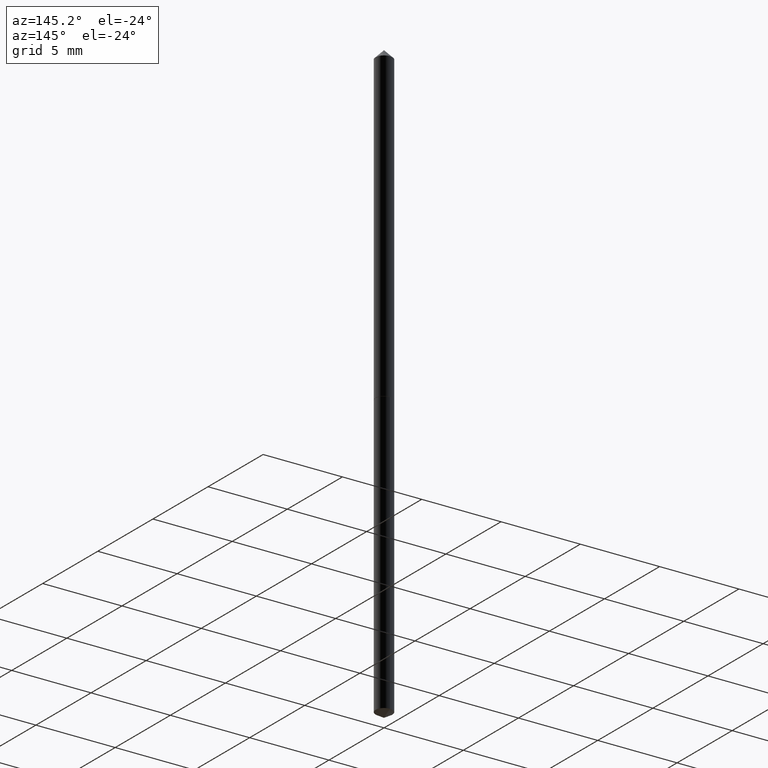
[diagram: clean part render]
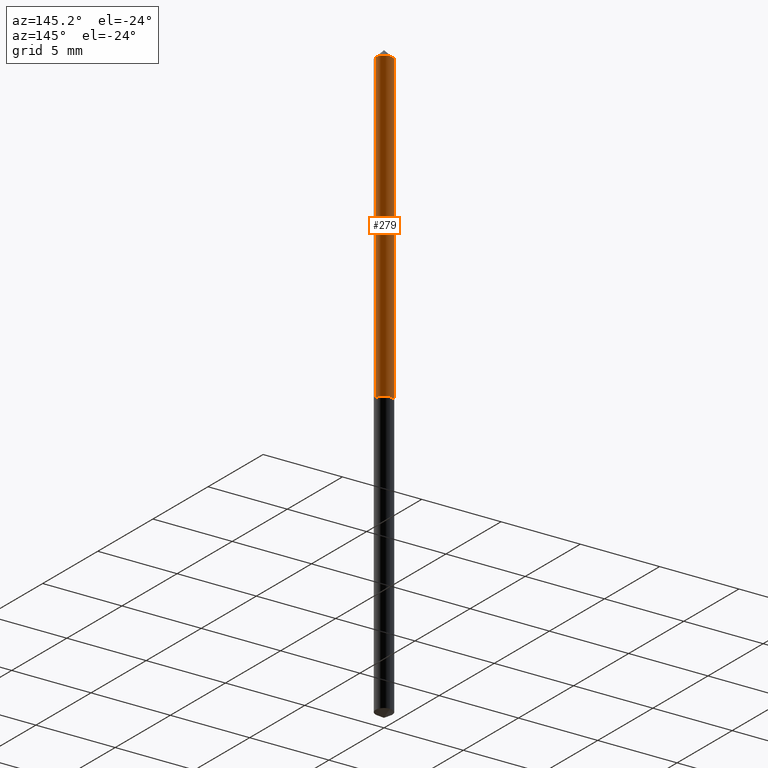
[diagram: same view with one face highlighted and labeled with its STEP entity id]
A machine part, auxiliary view. The second image highlights one B-rep face of the part: STEP entity #279.
In plain terms, the highlighted cylindrical surface (edge-blend (fillet) strip) has radius 0.5334 mm, axis along (-0, 0, 1).
Its self-contained STEP definition (entity closure, byte-faithful):
#7 = DIRECTION ( 'NONE',  ( -2.445468806185136597E-29, 3.491481338843145583E-15, 1.000000000000000000 ) ) ;
#8 = ORIENTED_EDGE ( 'NONE', *, *, #126, .T. ) ;
#14 = AXIS2_PLACEMENT_3D ( 'NONE', #321, #44, #297 ) ;
#16 = VECTOR ( 'NONE', #219, 39.37007874015748143 ) ;
#24 = AXIS2_PLACEMENT_3D ( 'NONE', #163, #138, #328 ) ;
#38 = VERTEX_POINT ( 'NONE', #190 ) ;
#42 = ORIENTED_EDGE ( 'NONE', *, *, #349, .F. ) ;
#44 = DIRECTION ( 'NONE',  ( -2.445468806185136597E-29, 3.491481338843145583E-15, 1.000000000000000000 ) ) ;
#52 = ORIENTED_EDGE ( 'NONE', *, *, #69, .F. ) ;
#55 = FACE_OUTER_BOUND ( 'NONE', #355, .T. ) ;
#69 = EDGE_CURVE ( 'NONE', #38, #346, #109, .T. ) ;
#85 = CARTESIAN_POINT ( 'NONE',  ( 0.02100000000000000824, -2.557510080702606759E-16, -0.03125000000000020817 ) ) ;
#90 = EDGE_CURVE ( 'NONE', #186, #99, #221, .T. ) ;
#99 = VERTEX_POINT ( 'NONE', #168 ) ;
#102 = CYLINDRICAL_SURFACE ( 'NONE', #14, 0.02100000000000005335 ) ;
#109 = LINE ( 'NONE', #360, #16 ) ;
#126 = EDGE_CURVE ( 'NONE', #38, #186, #327, .T. ) ;
#129 = DIRECTION ( 'NONE',  ( 1.000000000000000000, -6.982962677686276177E-15, 0.000000000000000000 ) ) ;
#138 = DIRECTION ( 'NONE',  ( -2.445468806185136597E-29, 3.491481338843145583E-15, 1.000000000000000000 ) ) ;
#147 = CARTESIAN_POINT ( 'NONE',  ( -0.02100000000000010192, -2.614293505184728629E-15, -0.7915000000000002034 ) ) ;
#150 = CIRCLE ( 'NONE', #24, 0.02100000000000000824 ) ;
#163 = CARTESIAN_POINT ( 'NONE',  ( 7.642090019328602662E-31, -1.091087918388490267E-16, -0.03125000000000020817 ) ) ;
#168 = CARTESIAN_POINT ( 'NONE',  ( -0.02100000000000000824, -1.287094161256977096E-15, -0.03125000000000020817 ) ) ;
#171 = DIRECTION ( 'NONE',  ( -2.445468806185136877E-29, 3.491481338843145188E-15, 1.000000000000000000 ) ) ;
#175 = AXIS2_PLACEMENT_3D ( 'NONE', #210, #7, #129 ) ;
#186 = VERTEX_POINT ( 'NONE', #147 ) ;
#190 = CARTESIAN_POINT ( 'NONE',  ( 0.02100000000000010192, -2.910149695925762806E-15, -0.7915000000000002034 ) ) ;
#200 = CARTESIAN_POINT ( 'NONE',  ( -0.02100000000000005335, 1.492139745096214181E-16, -1.032976368953532787E-30 ) ) ;
#210 = CARTESIAN_POINT ( 'NONE',  ( 1.935588560095536193E-29, -2.763507479694350590E-15, -0.7915000000000002034 ) ) ;
#219 = DIRECTION ( 'NONE',  ( -2.445468806185136877E-29, 3.491481338843145188E-15, 1.000000000000000000 ) ) ;
#221 = LINE ( 'NONE', #200, #363 ) ;
#264 = ORIENTED_EDGE ( 'NONE', *, *, #90, .T. ) ;
#279 = ADVANCED_FACE ( 'NONE', ( #55 ), #102, .T. ) ;
#297 = DIRECTION ( 'NONE',  ( 1.000000000000000000, -6.982962677686267499E-15, 4.876176775795936353E-29 ) ) ;
#321 = CARTESIAN_POINT ( 'NONE',  ( 0.000000000000000000, 0.000000000000000000, 0.000000000000000000 ) ) ;
#327 = CIRCLE ( 'NONE', #175, 0.02100000000000010192 ) ;
#328 = DIRECTION ( 'NONE',  ( 1.000000000000000000, -6.982962677686265922E-15, 0.000000000000000000 ) ) ;
#346 = VERTEX_POINT ( 'NONE', #85 ) ;
#349 = EDGE_CURVE ( 'NONE', #346, #99, #150, .T. ) ;
#355 = EDGE_LOOP ( 'NONE', ( #8, #264, #42, #52 ) ) ;
#360 = CARTESIAN_POINT ( 'NONE',  ( 0.02100000000000005335, -1.466422162314119944E-16, 1.023997122917149277E-30 ) ) ;
#363 = VECTOR ( 'NONE', #171, 39.37007874015748143 ) ;